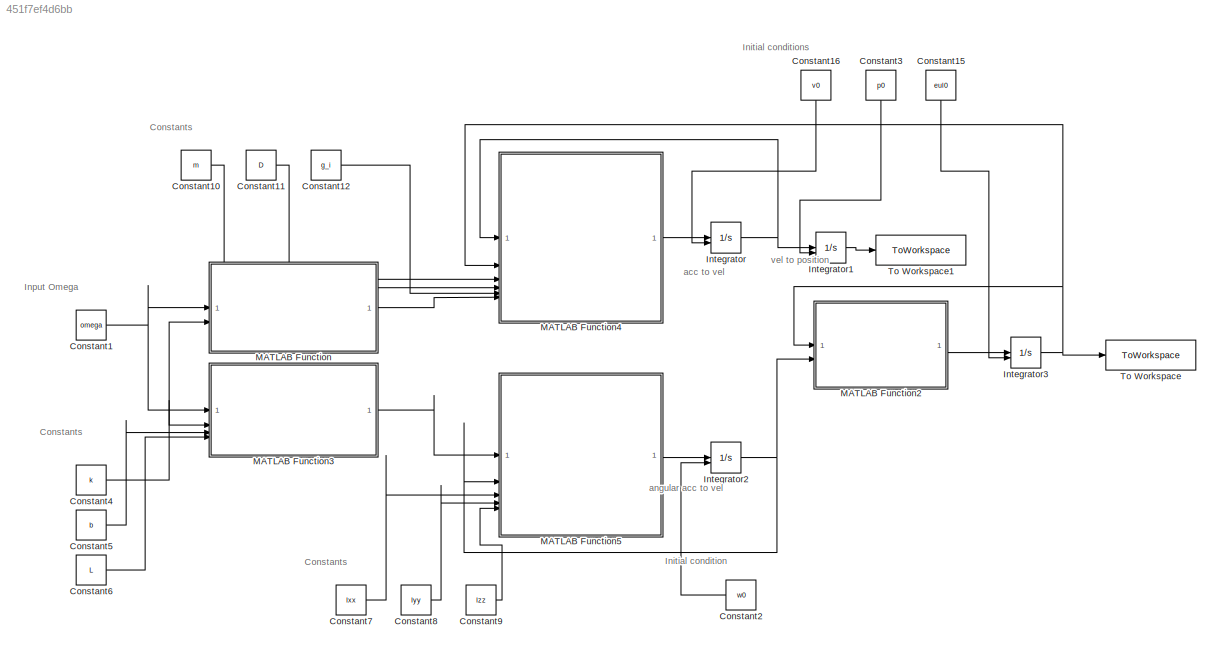
MODEL slx_451f7ef4d6bb
KIND model
CONFIG AbsTol = auto
CONFIG EnableMultiTasking = off
CONFIG FixedStep = auto
CONFIG MaxStep = auto
CONFIG MinStep = auto
CONFIG RelTol = 1e-3
CONFIG SampleTimeConstraint = Unconstrained
CONFIG SolverName = VariableStepAuto
CONFIG StartTime = 0.0
CONFIG StopTime = 10.0
BLOCK [Constant] Constant1
  Value = omega
BLOCK [Constant] Constant10
  Value = m
BLOCK [Constant] Constant11
  Value = D
BLOCK [Constant] Constant12
  Value = g_i
BLOCK [Constant] Constant15
  NameLocation = left
  Value = eul0
BLOCK [Constant] Constant16
  NameLocation = left
  Value = v0
BLOCK [Constant] Constant2
  NameLocation = top
  Value = w0
BLOCK [Constant] Constant3
  NameLocation = left
  Value = p0
BLOCK [Constant] Constant4
  Value = k
BLOCK [Constant] Constant5
  Value = b
BLOCK [Constant] Constant6
  Value = L
BLOCK [Constant] Constant7
  Value = Ixx
BLOCK [Constant] Constant8
  Value = Iyy
BLOCK [Constant] Constant9
  Value = Izz
BLOCK [Integrator] Integrator
  InitialConditionSource = external
BLOCK [Integrator] Integrator1
  InitialConditionSource = external
BLOCK [Integrator] Integrator2
  InitialCondition = w0
  InitialConditionSource = external
BLOCK [Integrator] Integrator3
  InitialConditionSource = external
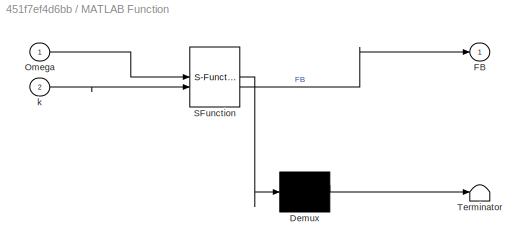
BLOCK [SubSystem] MATLAB Function
  ErrorFcn = Stateflow.Translate.translate
  PermitHierarchicalResolution = ExplicitOnly
  SFBlockType = MATLAB Function
  TreatAsAtomicUnit = on
BLOCK [Demux] MATLAB Function/ Demux 
  Outputs = 1
BLOCK [S-Function] MATLAB Function/ SFunction 
  EnableBusSupport = on
  FunctionName = sf_sfun
  PortCounts = [2 2]
  SFcnIsStateOwnerBlock = off
  SFunctionDeploymentMode = off
  Tag = Stateflow S-Function 2
BLOCK [Terminator] MATLAB Function/ Terminator 
BLOCK [Outport] MATLAB Function/FB
BLOCK [Inport] MATLAB Function/Omega
BLOCK [Inport] MATLAB Function/k
  Port = 2
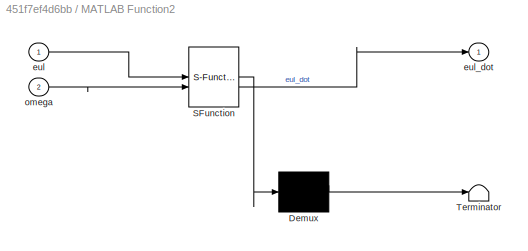
BLOCK [SubSystem] MATLAB Function2
  ErrorFcn = Stateflow.Translate.translate
  PermitHierarchicalResolution = ExplicitOnly
  SFBlockType = MATLAB Function
  TreatAsAtomicUnit = on
BLOCK [Demux] MATLAB Function2/ Demux 
  Outputs = 1
BLOCK [S-Function] MATLAB Function2/ SFunction 
  EnableBusSupport = on
  FunctionName = sf_sfun
  PortCounts = [2 2]
  SFcnIsStateOwnerBlock = off
  SFunctionDeploymentMode = off
  Tag = Stateflow S-Function 3
BLOCK [Terminator] MATLAB Function2/ Terminator 
BLOCK [Inport] MATLAB Function2/eul
BLOCK [Outport] MATLAB Function2/eul_dot
BLOCK [Inport] MATLAB Function2/omega
  Port = 2
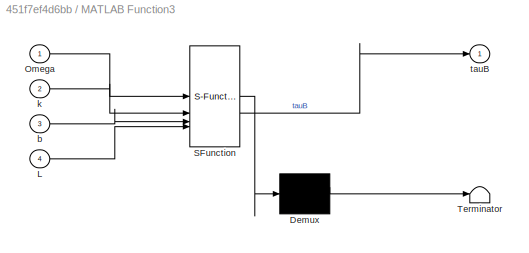
BLOCK [SubSystem] MATLAB Function3
  ErrorFcn = Stateflow.Translate.translate
  PermitHierarchicalResolution = ExplicitOnly
  SFBlockType = MATLAB Function
  TreatAsAtomicUnit = on
BLOCK [Demux] MATLAB Function3/ Demux 
  Outputs = 1
BLOCK [S-Function] MATLAB Function3/ SFunction 
  EnableBusSupport = on
  FunctionName = sf_sfun
  PortCounts = [4 2]
  SFcnIsStateOwnerBlock = off
  SFunctionDeploymentMode = off
  Tag = Stateflow S-Function 4
BLOCK [Terminator] MATLAB Function3/ Terminator 
BLOCK [Inport] MATLAB Function3/L
  Port = 4
BLOCK [Inport] MATLAB Function3/Omega
BLOCK [Inport] MATLAB Function3/b
  Port = 3
BLOCK [Inport] MATLAB Function3/k
  Port = 2
BLOCK [Outport] MATLAB Function3/tauB
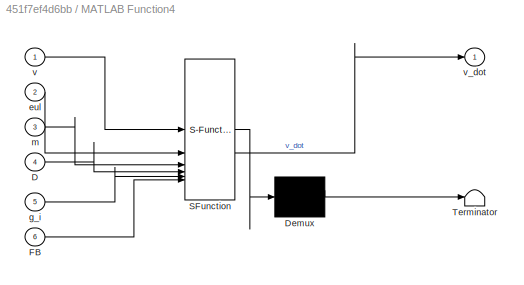
BLOCK [SubSystem] MATLAB Function4
  ErrorFcn = Stateflow.Translate.translate
  PermitHierarchicalResolution = ExplicitOnly
  SFBlockType = MATLAB Function
  TreatAsAtomicUnit = on
BLOCK [Demux] MATLAB Function4/ Demux 
  Outputs = 1
BLOCK [S-Function] MATLAB Function4/ SFunction 
  EnableBusSupport = on
  FunctionName = sf_sfun
  PortCounts = [6 2]
  SFcnIsStateOwnerBlock = off
  SFunctionDeploymentMode = off
  Tag = Stateflow S-Function 5
BLOCK [Terminator] MATLAB Function4/ Terminator 
BLOCK [Inport] MATLAB Function4/D
  Port = 4
BLOCK [Inport] MATLAB Function4/FB
  Port = 6
BLOCK [Inport] MATLAB Function4/eul
  Port = 2
BLOCK [Inport] MATLAB Function4/g_i
  Port = 5
BLOCK [Inport] MATLAB Function4/m
  Port = 3
BLOCK [Inport] MATLAB Function4/v
BLOCK [Outport] MATLAB Function4/v_dot
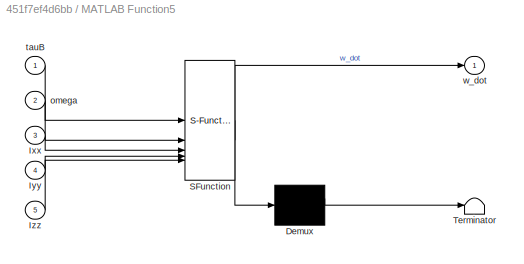
BLOCK [SubSystem] MATLAB Function5
  ErrorFcn = Stateflow.Translate.translate
  PermitHierarchicalResolution = ExplicitOnly
  SFBlockType = MATLAB Function
  TreatAsAtomicUnit = on
BLOCK [Demux] MATLAB Function5/ Demux 
  Outputs = 1
BLOCK [S-Function] MATLAB Function5/ SFunction 
  EnableBusSupport = on
  FunctionName = sf_sfun
  PortCounts = [5 2]
  SFcnIsStateOwnerBlock = off
  SFunctionDeploymentMode = off
  Tag = Stateflow S-Function 6
BLOCK [Terminator] MATLAB Function5/ Terminator 
BLOCK [Inport] MATLAB Function5/Ixx
  Port = 3
BLOCK [Inport] MATLAB Function5/Iyy
  Port = 4
BLOCK [Inport] MATLAB Function5/Izz
  Port = 5
BLOCK [Inport] MATLAB Function5/omega
  Port = 2
BLOCK [Inport] MATLAB Function5/tauB
BLOCK [Outport] MATLAB Function5/w_dot
BLOCK [ToWorkspace] To Workspace
  FixptAsFi = on
  MaxDataPoints = inf
  SampleTime = -1
  SaveFormat = Timeseries
  VariableName = euler
BLOCK [ToWorkspace] To Workspace1
  FixptAsFi = on
  MaxDataPoints = inf
  SampleTime = -1
  SaveFormat = Timeseries
  VariableName = p
ANNOTATION (root): Constants
ANNOTATION (root): Initial condition
ANNOTATION (root): Initial conditions
ANNOTATION (root): Input Omega
ANNOTATION (root): acc to vel
ANNOTATION (root): angular acc to vel
ANNOTATION (root): vel to position
LINE Constant10:1 -> MATLAB Function4:3
LINE Constant11:1 -> MATLAB Function4:4
LINE Constant12:1 -> MATLAB Function4:5
LINE Constant15:1 -> Integrator3:2
LINE Constant16:1 -> Integrator:2
NET Constant1:1 -> MATLAB Function3:1, MATLAB Function:1
LINE Constant2:1 -> Integrator2:2
LINE Constant3:1 -> Integrator1:2
NET Constant4:1 -> MATLAB Function3:2, MATLAB Function:2
LINE Constant5:1 -> MATLAB Function3:3
LINE Constant6:1 -> MATLAB Function3:4
LINE Constant7:1 -> MATLAB Function5:3
LINE Constant8:1 -> MATLAB Function5:4
LINE Constant9:1 -> MATLAB Function5:5
LINE Integrator1:1 -> To Workspace1:1
NET Integrator2:1 -> MATLAB Function2:2, MATLAB Function5:2
NET Integrator3:1 -> MATLAB Function2:1, MATLAB Function4:2, To Workspace:1
NET Integrator:1 -> Integrator1:1, MATLAB Function4:1
LINE MATLAB Function2:1 -> Integrator3:1
LINE MATLAB Function3:1 -> MATLAB Function5:1
LINE MATLAB Function4:1 -> Integrator:1
LINE MATLAB Function5:1 -> Integrator2:1
LINE MATLAB Function:1 -> MATLAB Function4:6
note: NET lines group one-source signal fan-out (src -> all destinations, sorted); 1:1 wires keep LINE
CHART MATLAB Function states=1 transitions=1
  STATE_LABEL 'eML_blk_kernel()'
  STATE_LABEL "SCRIPT:\nfunction FB  = forces(Omega, k)\n    % omega = [ω1 ω2 ω3 ω4]'  (rad/s)\n    T = k*sum(Omega.^2);      % total thrust magnitude\n    FB = [0;0;T];             % thrust in body frame (z_b)\nend"
CHART MATLAB Function2 states=1 transitions=1
  STATE_LABEL 'eML_blk_kernel()'
  STATE_LABEL 'SCRIPT:\nfunction eul_dot = W_inv(eul ,omega)\n\n    phi   = eul(1); % Roll angle\n    theta = eul(2); % Pitch angle\n    psi   = eul(3); % Yaw angle\n\n    sphi = sin(phi);  cphi = cos(phi);\n    tth  = tan(theta); cth = cos(theta);\n    W = [ 1  sphi*tth  cphi*tth;\n          0     cphi      -sphi;\n          0  sphi/cth  cphi/cth ];\n    eul_dot = W*omega;\nend'
CHART MATLAB Function3 states=1 transitions=1
  STATE_LABEL 'eML_blk_kernel()'
  STATE_LABEL "SCRIPT:\nfunction tauB  = torques(Omega, k, b, L)\n    % omega = [ω1 ω2 ω3 ω4]'  (rad/s)\n    tauB = [ L*k*(Omega(1)^2 - Omega(3)^2);     % roll\n             L*k*(Omega(2)^2 - Omega(4)^2);     % pitch\n             b*(Omega(1)^2 - Omega(2)^2 + Omega(3)^2 - Omega(4)^2) ];\nend"
CHART MATLAB Function4 states=1 transitions=1
  STATE_LABEL 'eML_blk_kernel()'
  STATE_LABEL 'SCRIPT:\nfunction v_dot = transl_dynamics(v, eul, m, D, g_i, FB)\n% FB      : 3×1    (N)   thrust expressed in the BODY frame\n% v       : 3×1    (m/s) inertial linear velocity\n% eul_a   : 3x1 (rad)   Euler angles [phi; theta; psi] representing\n%                             the orientation of the body-fixed frame w.r.t.\n%                             the inertial frame.\n%                             p...<+879ch>'
CHART MATLAB Function5 states=1 transitions=1
  STATE_LABEL 'eML_blk_kernel()'
  STATE_LABEL 'SCRIPT:\nfunction w_dot = rot_dynamics(tauB, omega, Ixx, Iyy, Izz)\n% tauB : 3×1   (N·m)      body torques\n% omega: 3×1   (rad/s)    current body angular velocity\n\nI  = diag([Ixx Iyy Izz]);\ninvI = diag([1/Ixx 1/Iyy 1/Izz]);\n\nw_cross_Iw = [  0       -omega(3)  omega(2);\n                omega(3)  0       -omega(1);\n               -omega(2)  omega(1) 0 ] * (I*omega);\n\nw_dot = invI * ( tauB - w_cross_Iw...<+7ch>'
CHART  states=0 transitions=0
CHART  states=0 transitions=0
CHART  states=0 transitions=0
CHART  states=0 transitions=0
CHART  states=0 transitions=0
